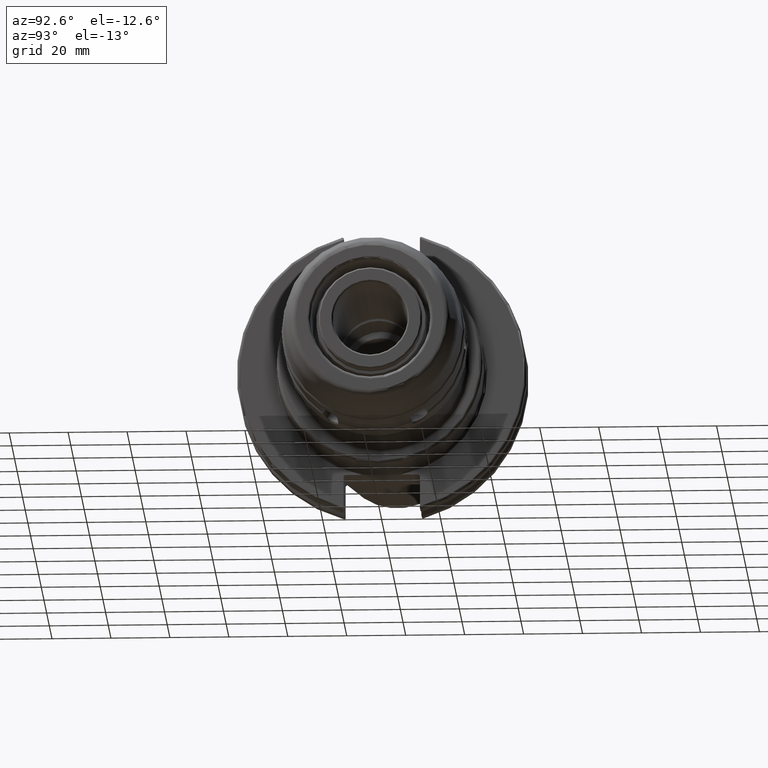
[diagram: clean part render]
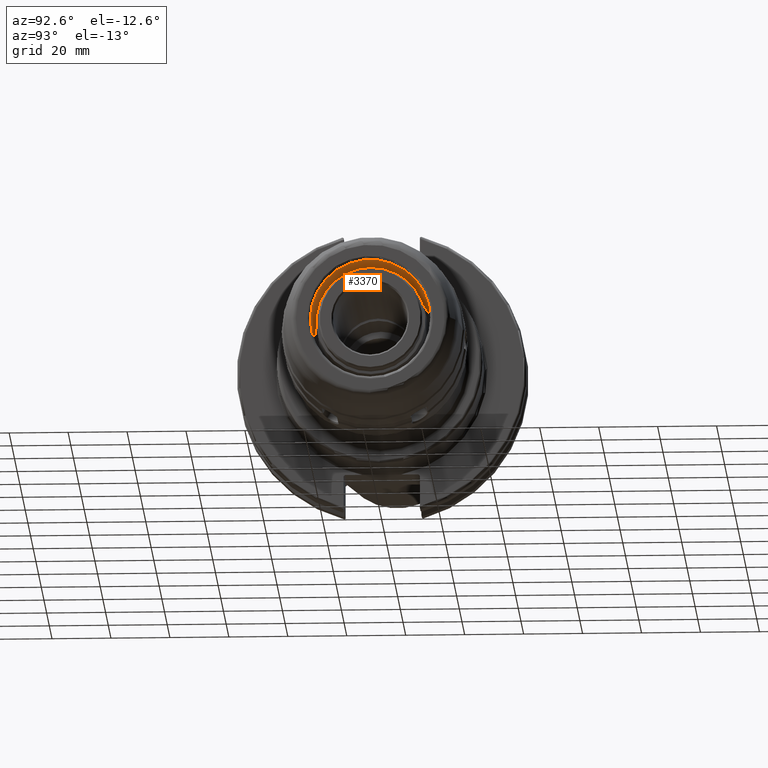
[diagram: same view with one face highlighted and labeled with its STEP entity id]
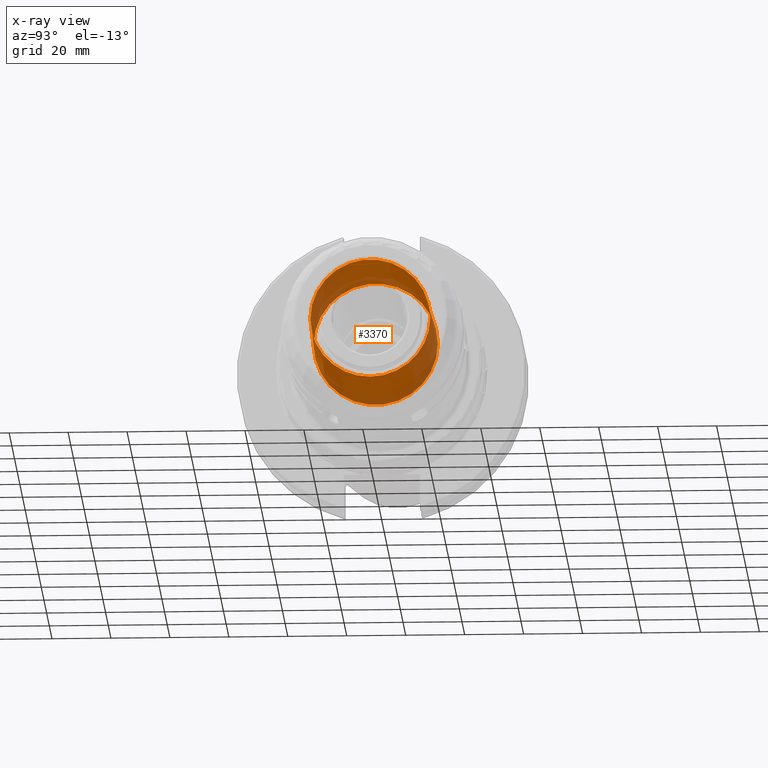
[diagram: x-ray of the same camera — body ghosted, the highlighted face saturated]
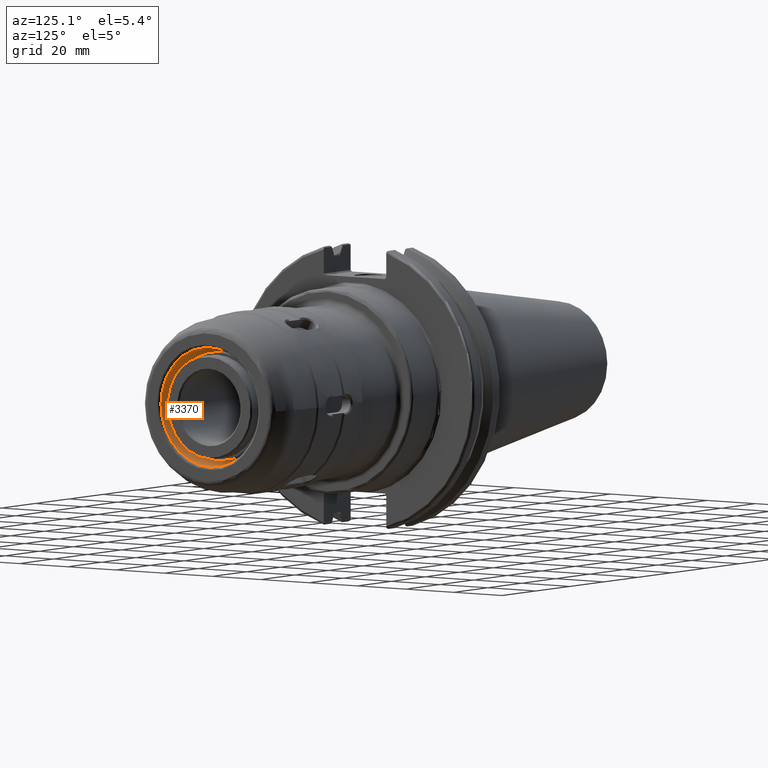
[diagram: same view with one face highlighted and labeled with its STEP entity id]
A machine part, auxiliary view. The second image highlights one B-rep face of the part: STEP entity #3370.
The next image is the same camera in x-ray: the body ghosted, the highlighted face saturated — about 29% of this face is hidden behind the body in this view.
A second angle (auxiliary view) of the same face is appended — the face is thin or edge-on in the first view.
In plain terms, the highlighted conical surface has half-angle 1 deg.
Its self-contained STEP definition (entity closure, byte-faithful):
#130=CONICAL_SURFACE('',#3753,20.6943253767682,0.0174532925199433);
#455=FACE_OUTER_BOUND('',#650,.T.);
#650=EDGE_LOOP('',(#3031,#3032,#3033,#3034,#3035,#3036,#3037));
#878=LINE('',#6865,#1089);
#1089=VECTOR('',#4617,20.6943253767682);
#1236=CIRCLE('',#3748,21.0600095187126);
#1237=CIRCLE('',#3749,21.0600095187126);
#1240=CIRCLE('',#3754,20.3429104513521);
#1241=CIRCLE('',#3755,20.3429104513521);
#1242=CIRCLE('',#3756,20.3429104513521);
#1586=VERTEX_POINT('',#6848);
#1587=VERTEX_POINT('',#6850);
#1590=VERTEX_POINT('',#6859);
#1591=VERTEX_POINT('',#6860);
#1592=VERTEX_POINT('',#6862);
#2079=EDGE_CURVE('',#1586,#1587,#1236,.T.);
#2080=EDGE_CURVE('',#1587,#1586,#1237,.T.);
#2083=EDGE_CURVE('',#1590,#1591,#1240,.T.);
#2084=EDGE_CURVE('',#1592,#1590,#1241,.T.);
#2085=EDGE_CURVE('',#1591,#1592,#1242,.T.);
#2086=EDGE_CURVE('',#1591,#1587,#878,.T.);
#3031=ORIENTED_EDGE('',*,*,#2083,.F.);
#3032=ORIENTED_EDGE('',*,*,#2084,.F.);
#3033=ORIENTED_EDGE('',*,*,#2085,.F.);
#3034=ORIENTED_EDGE('',*,*,#2086,.T.);
#3035=ORIENTED_EDGE('',*,*,#2079,.F.);
#3036=ORIENTED_EDGE('',*,*,#2080,.F.);
#3037=ORIENTED_EDGE('',*,*,#2086,.F.);
#3370=ADVANCED_FACE('',(#455),#130,.F.);
#3748=AXIS2_PLACEMENT_3D('',#6851,#4599,#4600);
#3749=AXIS2_PLACEMENT_3D('',#6852,#4601,#4602);
#3753=AXIS2_PLACEMENT_3D('',#6858,#4609,#4610);
#3754=AXIS2_PLACEMENT_3D('',#6861,#4611,#4612);
#3755=AXIS2_PLACEMENT_3D('',#6863,#4613,#4614);
#3756=AXIS2_PLACEMENT_3D('',#6864,#4615,#4616);
#4599=DIRECTION('center_axis',(1.,0.,0.));
#4600=DIRECTION('ref_axis',(0.,-1.,-6.12323399573676E-17));
#4601=DIRECTION('center_axis',(1.,0.,0.));
#4602=DIRECTION('ref_axis',(0.,-1.,-6.12323399573676E-17));
#4609=DIRECTION('center_axis',(-1.,0.,0.));
#4610=DIRECTION('ref_axis',(0.,1.,0.));
#4611=DIRECTION('center_axis',(-1.,0.,0.));
#4612=DIRECTION('ref_axis',(0.,-1.,3.06161699786838E-17));
#4613=DIRECTION('center_axis',(-1.,0.,0.));
#4614=DIRECTION('ref_axis',(0.,-1.,3.06161699786838E-17));
#4615=DIRECTION('center_axis',(-1.,0.,0.));
#4616=DIRECTION('ref_axis',(0.,-1.,3.06161699786838E-17));
#4617=DIRECTION('',(-0.999847695156391,-0.0174524064372835,-2.1373033680838E-18));
#6848=CARTESIAN_POINT('',(6.39996953903128,21.0600095187126,2.57910732471041E-15));
#6850=CARTESIAN_POINT('',(6.39996953903128,-21.0600095187126,-2.57910732471041E-15));
#6851=CARTESIAN_POINT('Origin',(6.39996953903128,0.,-1.28955366235521E-15));
#6852=CARTESIAN_POINT('Origin',(6.39996953903128,0.,-1.28955366235521E-15));
#6858=CARTESIAN_POINT('Origin',(27.35,0.,0.));
#6859=CARTESIAN_POINT('',(47.4825475935627,20.3429104513521,-6.22822004239741E-15));
#6860=CARTESIAN_POINT('',(47.4825475935627,-20.3429104513521,-2.49128801695896E-15));
#6861=CARTESIAN_POINT('Origin',(47.4825475935627,0.,-3.1141100211987E-15));
#6862=CARTESIAN_POINT('',(47.4825475935627,-2.49128801695896E-15,20.3429104513521));
#6863=CARTESIAN_POINT('Origin',(47.4825475935627,0.,-3.1141100211987E-15));
#6864=CARTESIAN_POINT('Origin',(47.4825475935627,0.,-3.1141100211987E-15));
#6865=CARTESIAN_POINT('',(27.35,-20.6943253767682,-2.5343239333173E-15));